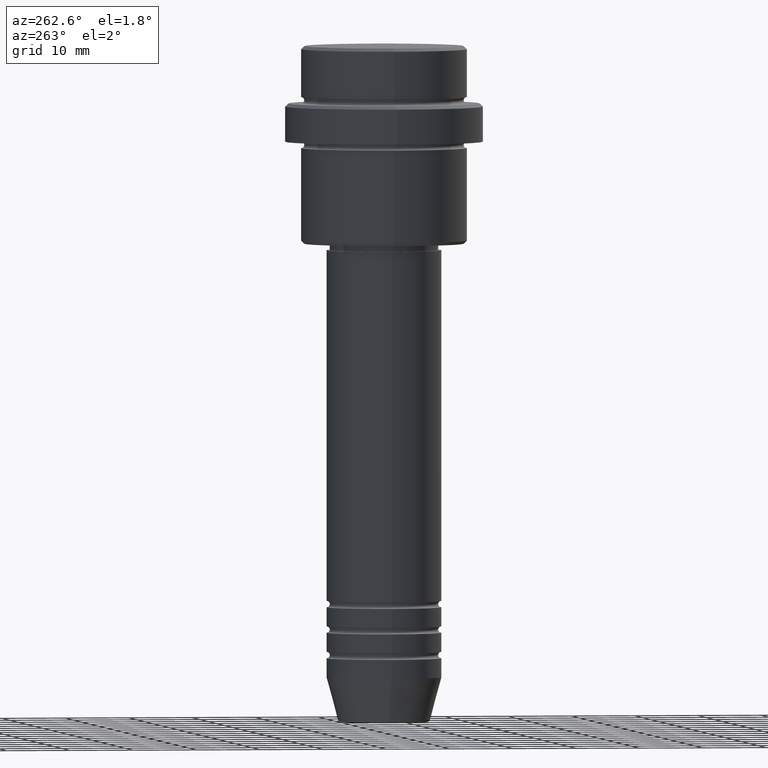
[diagram: clean part render]
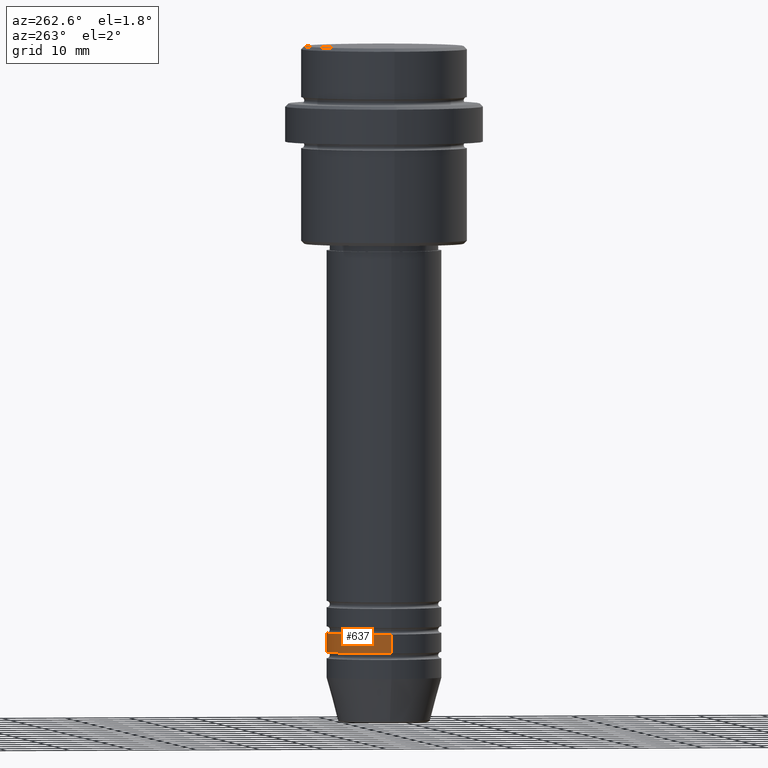
[diagram: same view with one face highlighted and labeled with its STEP entity id]
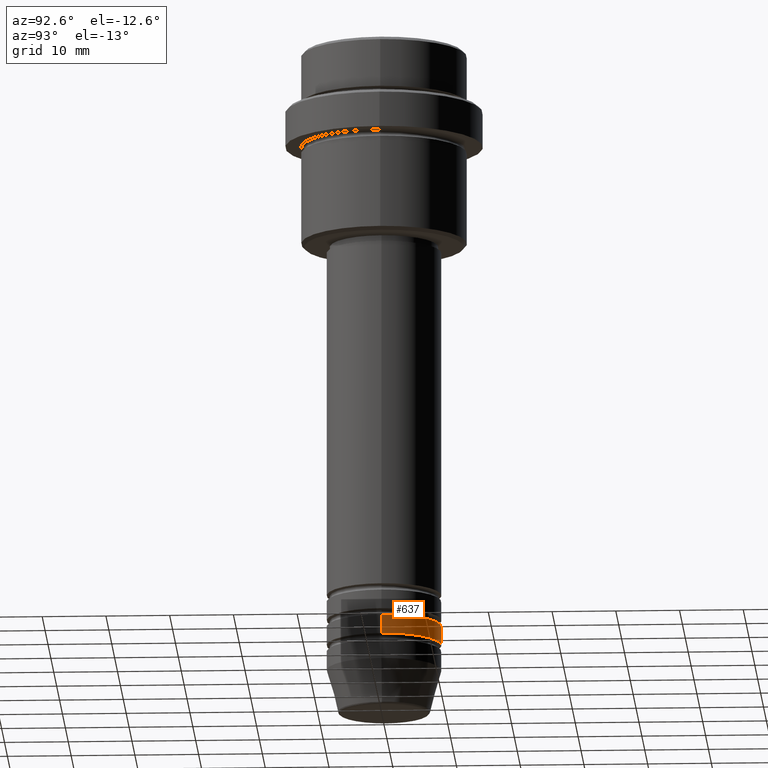
[diagram: same view with one face highlighted and labeled with its STEP entity id]
A machine part, auxiliary view. The second image highlights one B-rep face of the part: STEP entity #637.
A second angle (auxiliary view) of the same face is appended — the face is thin or edge-on in the first view.
In plain terms, the highlighted cylindrical surface (partial cylindrical patch) has radius 9 mm, axis along (-0, -0, 1).
Its self-contained STEP definition (entity closure, byte-faithful):
#40 = CARTESIAN_POINT ( 'NONE',  ( 0.000000000000000000, 0.000000000000000000, -94.99999999999987210 ) ) ;
#61 = ORIENTED_EDGE ( 'NONE', *, *, #402, .T. ) ;
#77 = VERTEX_POINT ( 'NONE', #1112 ) ;
#185 = VECTOR ( 'NONE', #1326, 1000.000000000000000 ) ;
#194 = EDGE_CURVE ( 'NONE', #77, #728, #435, .T. ) ;
#198 = DIRECTION ( 'NONE',  ( 1.000000000000000000, 0.000000000000000000, 0.000000000000000000 ) ) ;
#204 = LINE ( 'NONE', #980, #945 ) ;
#238 = AXIS2_PLACEMENT_3D ( 'NONE', #1413, #431, #198 ) ;
#286 = CYLINDRICAL_SURFACE ( 'NONE', #1362, 9.000000000000000000 ) ;
#374 = CARTESIAN_POINT ( 'NONE',  ( -9.000000000000000000, 1.102182119232617714E-15, -91.99999999999988631 ) ) ;
#402 = EDGE_CURVE ( 'NONE', #728, #1066, #884, .T. ) ;
#406 = CARTESIAN_POINT ( 'NONE',  ( 0.000000000000000000, 0.000000000000000000, 0.000000000000000000 ) ) ;
#431 = DIRECTION ( 'NONE',  ( -0.000000000000000000, -0.000000000000000000, 1.000000000000000000 ) ) ;
#435 = CIRCLE ( 'NONE', #1146, 9.000000000000000000 ) ;
#488 = ORIENTED_EDGE ( 'NONE', *, *, #881, .F. ) ;
#528 = ORIENTED_EDGE ( 'NONE', *, *, #1305, .F. ) ;
#544 = CARTESIAN_POINT ( 'NONE',  ( -9.000000000000000000, 1.102182119232617714E-15, 0.000000000000000000 ) ) ;
#552 = CIRCLE ( 'NONE', #238, 9.000000000000000000 ) ;
#609 = EDGE_LOOP ( 'NONE', ( #827, #61, #528, #488 ) ) ;
#637 = ADVANCED_FACE ( 'NONE', ( #727 ), #286, .T. ) ;
#727 = FACE_OUTER_BOUND ( 'NONE', #609, .T. ) ;
#728 = VERTEX_POINT ( 'NONE', #1056 ) ;
#827 = ORIENTED_EDGE ( 'NONE', *, *, #194, .T. ) ;
#855 = DIRECTION ( 'NONE',  ( 1.000000000000000000, 0.000000000000000000, 0.000000000000000000 ) ) ;
#860 = CARTESIAN_POINT ( 'NONE',  ( 9.000000000000000000, 0.000000000000000000, -91.99999999999988631 ) ) ;
#881 = EDGE_CURVE ( 'NONE', #77, #1350, #204, .T. ) ;
#884 = LINE ( 'NONE', #544, #185 ) ;
#945 = VECTOR ( 'NONE', #1324, 1000.000000000000000 ) ;
#980 = CARTESIAN_POINT ( 'NONE',  ( 9.000000000000000000, 0.000000000000000000, 0.000000000000000000 ) ) ;
#1056 = CARTESIAN_POINT ( 'NONE',  ( -9.000000000000000000, 1.102182119232617714E-15, -94.99999999999987210 ) ) ;
#1066 = VERTEX_POINT ( 'NONE', #374 ) ;
#1112 = CARTESIAN_POINT ( 'NONE',  ( 9.000000000000000000, 0.000000000000000000, -94.99999999999987210 ) ) ;
#1146 = AXIS2_PLACEMENT_3D ( 'NONE', #40, #1253, #1355 ) ;
#1253 = DIRECTION ( 'NONE',  ( -0.000000000000000000, -0.000000000000000000, 1.000000000000000000 ) ) ;
#1286 = DIRECTION ( 'NONE',  ( -0.000000000000000000, -0.000000000000000000, 1.000000000000000000 ) ) ;
#1305 = EDGE_CURVE ( 'NONE', #1350, #1066, #552, .T. ) ;
#1324 = DIRECTION ( 'NONE',  ( -0.000000000000000000, -0.000000000000000000, 1.000000000000000000 ) ) ;
#1326 = DIRECTION ( 'NONE',  ( -0.000000000000000000, -0.000000000000000000, 1.000000000000000000 ) ) ;
#1350 = VERTEX_POINT ( 'NONE', #860 ) ;
#1355 = DIRECTION ( 'NONE',  ( 1.000000000000000000, 0.000000000000000000, 0.000000000000000000 ) ) ;
#1362 = AXIS2_PLACEMENT_3D ( 'NONE', #406, #1286, #855 ) ;
#1413 = CARTESIAN_POINT ( 'NONE',  ( 0.000000000000000000, 0.000000000000000000, -91.99999999999988631 ) ) ;